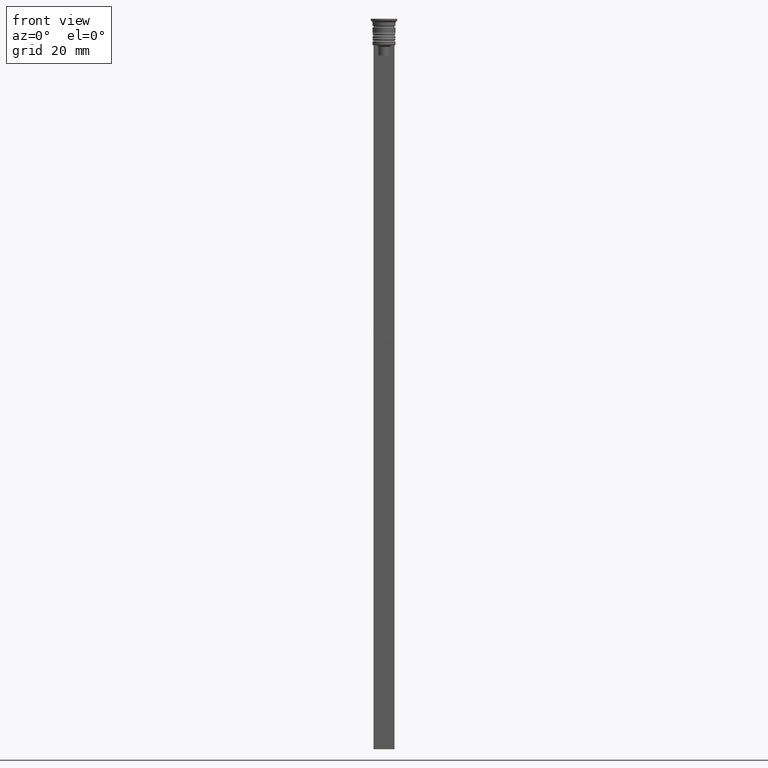
[diagram: clean part render]
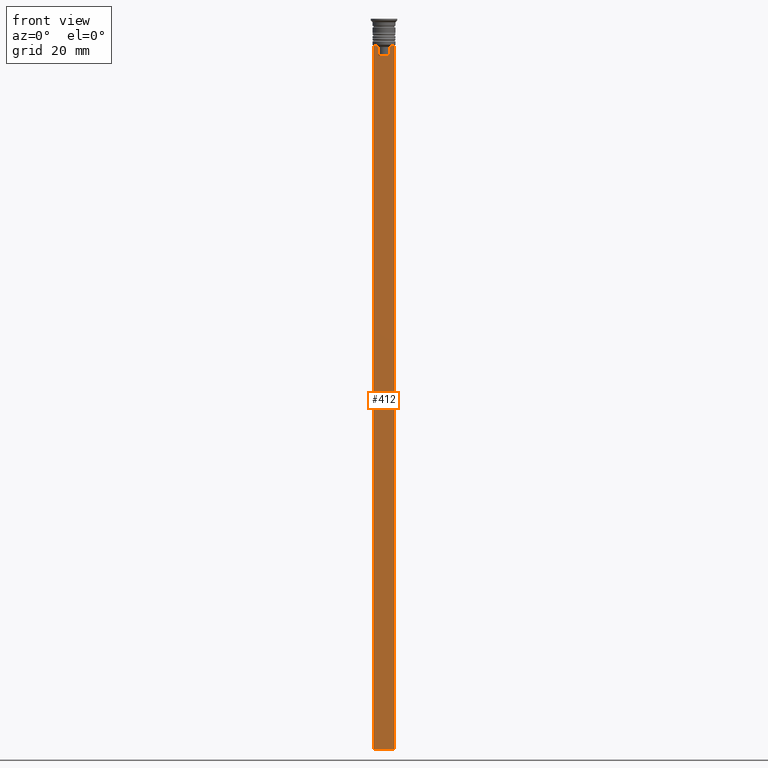
[diagram: same view with one face highlighted and labeled with its STEP entity id]
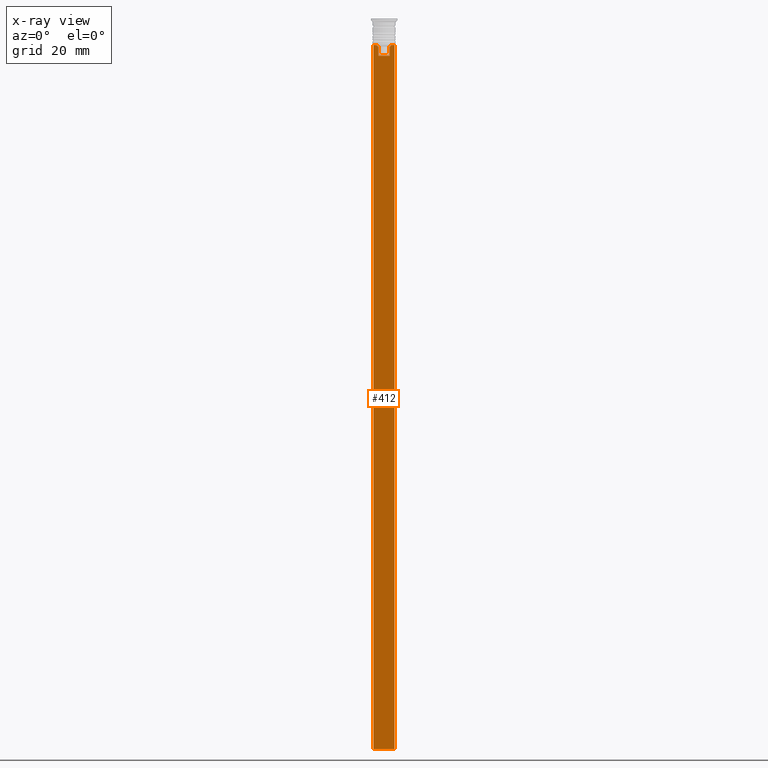
[diagram: x-ray of the same camera — body ghosted, the highlighted face saturated]
A machine part, front view. The second image highlights one B-rep face of the part: STEP entity #412.
The next image is the same camera in x-ray: the body ghosted, the highlighted face saturated — about 0% of this face is hidden behind the body in this view.
In plain terms, the highlighted planar face has unit normal (0, -1, -0).
Its self-contained STEP definition (entity closure, byte-faithful):
#10 = CARTESIAN_POINT ( 'NONE',  ( -1.952043732028444500, -0.3500000000000000333, -7.667018567316270961 ) ) ;
#102 = CARTESIAN_POINT ( 'NONE',  ( -3.000000000000004441, -0.3500000000000000333, -7.500000000000000000 ) ) ;
#123 = EDGE_CURVE ( 'NONE', #301, #2111, #736, .T. ) ;
#140 = LINE ( 'NONE', #984, #482 ) ;
#144 = VERTEX_POINT ( 'NONE', #250 ) ;
#149 = CARTESIAN_POINT ( 'NONE',  ( 1.952040775369266346, -0.3500000000000000333, -7.667021484535463394 ) ) ;
#150 = EDGE_CURVE ( 'NONE', #1911, #816, #1265, .T. ) ;
#231 = CARTESIAN_POINT ( 'NONE',  ( 2.999999999999995559, -0.3500000000000000333, -7.500000000000000000 ) ) ;
#250 = CARTESIAN_POINT ( 'NONE',  ( -1.612451549659713601, -0.3500000000000000333, -10.49999999999999822 ) ) ;
#260 = DIRECTION ( 'NONE',  ( 1.000000000000000000, 0.000000000000000000, 0.000000000000000000 ) ) ;
#301 = VERTEX_POINT ( 'NONE', #1477 ) ;
#354 = CARTESIAN_POINT ( 'NONE',  ( 2.999999999999995559, -0.3500000000000000333, -1.459304675784417915 ) ) ;
#368 = CARTESIAN_POINT ( 'NONE',  ( 2.999999999999995559, -0.3500000000000000333, -7.500000000000000000 ) ) ;
#389 = DIRECTION ( 'NONE',  ( 0.000000000000000000, 0.000000000000000000, -1.000000000000000000 ) ) ;
#412 = ADVANCED_FACE ( 'NONE', ( #1695 ), #509, .T. ) ;
#445 = CARTESIAN_POINT ( 'NONE',  ( 1.612451549659713601, -0.3500000000000000333, 0.000000000000000000 ) ) ;
#451 = ORIENTED_EDGE ( 'NONE', *, *, #1585, .F. ) ;
#470 = B_SPLINE_CURVE_WITH_KNOTS ( 'NONE', 3,
 ( #1474, #1654, #149, #811 ),
 .UNSPECIFIED., .F., .F.,
 ( 4, 4 ),
 ( 0.008600796474521228696, 0.009317962624906526645 ),
 .UNSPECIFIED. ) ;
#477 = VECTOR ( 'NONE', #2131, 1000.000000000000000 ) ;
#482 = VECTOR ( 'NONE', #1199, 1000.000000000000000 ) ;
#490 = CARTESIAN_POINT ( 'NONE',  ( 1.612451549659713601, -0.3500000000000000333, -8.000000000000000000 ) ) ;
#509 = PLANE ( 'NONE',  #677 ) ;
#520 = DIRECTION ( 'NONE',  ( 0.000000000000000000, 0.000000000000000000, -1.000000000000000000 ) ) ;
#521 = CARTESIAN_POINT ( 'NONE',  ( -1.782527878033862478, -0.3500000000000000333, -7.833794036819864637 ) ) ;
#623 = ORIENTED_EDGE ( 'NONE', *, *, #919, .T. ) ;
#628 = CARTESIAN_POINT ( 'NONE',  ( 2.999999999999995559, -0.3500000000000000333, -7.500000000000000000 ) ) ;
#648 = LINE ( 'NONE', #806, #793 ) ;
#673 = CARTESIAN_POINT ( 'NONE',  ( 2.121320343559647270, -0.3500000000000000333, -7.500000000000000000 ) ) ;
#674 = EDGE_CURVE ( 'NONE', #816, #1580, #140, .T. ) ;
#676 = CARTESIAN_POINT ( 'NONE',  ( -1.612451549659713601, -0.3500000000000000333, -8.000000000000000000 ) ) ;
#677 = AXIS2_PLACEMENT_3D ( 'NONE', #354, #2069, #520 ) ;
#736 = LINE ( 'NONE', #445, #477 ) ;
#760 = CARTESIAN_POINT ( 'NONE',  ( -3.000000000000004441, -0.3500000000000000333, -207.5000000000000284 ) ) ;
#774 = CARTESIAN_POINT ( 'NONE',  ( -2.121320343559647270, -0.3500000000000000333, -7.500000000000000000 ) ) ;
#781 = EDGE_CURVE ( 'NONE', #2111, #1911, #470, .T. ) ;
#793 = VECTOR ( 'NONE', #2165, 1000.000000000000000 ) ;
#806 = CARTESIAN_POINT ( 'NONE',  ( 2.999999999999995559, -0.3500000000000000333, -207.5000000000000284 ) ) ;
#811 = CARTESIAN_POINT ( 'NONE',  ( 2.121320343559647270, -0.3500000000000000333, -7.500000000000000000 ) ) ;
#816 = VERTEX_POINT ( 'NONE', #368 ) ;
#822 = VECTOR ( 'NONE', #260, 1000.000000000000000 ) ;
#835 = CARTESIAN_POINT ( 'NONE',  ( -2.121320343559647270, -0.3500000000000000333, -7.500000000000000000 ) ) ;
#859 = DIRECTION ( 'NONE',  ( 0.000000000000000000, 0.000000000000000000, -1.000000000000000000 ) ) ;
#861 = VECTOR ( 'NONE', #1342, 1000.000000000000000 ) ;
#919 = EDGE_CURVE ( 'NONE', #1013, #1483, #1059, .T. ) ;
#924 = ORIENTED_EDGE ( 'NONE', *, *, #123, .F. ) ;
#939 = ORIENTED_EDGE ( 'NONE', *, *, #150, .F. ) ;
#959 = DIRECTION ( 'NONE',  ( 1.000000000000000000, 0.000000000000000000, 0.000000000000000000 ) ) ;
#960 = EDGE_CURVE ( 'NONE', #1013, #1949, #1437, .T. ) ;
#984 = CARTESIAN_POINT ( 'NONE',  ( 2.999999999999995559, -0.3500000000000000333, -1.459304675784417915 ) ) ;
#989 = ORIENTED_EDGE ( 'NONE', *, *, #1327, .F. ) ;
#1013 = VERTEX_POINT ( 'NONE', #102 ) ;
#1031 = CARTESIAN_POINT ( 'NONE',  ( -1.612451549659713601, -0.3500000000000000333, 0.000000000000000000 ) ) ;
#1055 = VERTEX_POINT ( 'NONE', #1109 ) ;
#1059 = LINE ( 'NONE', #1908, #1891 ) ;
#1109 = CARTESIAN_POINT ( 'NONE',  ( -1.612451549659713601, -0.3500000000000000333, -8.000000000000000000 ) ) ;
#1183 = VECTOR ( 'NONE', #959, 1000.000000000000000 ) ;
#1199 = DIRECTION ( 'NONE',  ( 0.000000000000000000, 0.000000000000000000, -1.000000000000000000 ) ) ;
#1211 = ORIENTED_EDGE ( 'NONE', *, *, #1542, .F. ) ;
#1237 = ORIENTED_EDGE ( 'NONE', *, *, #960, .F. ) ;
#1265 = LINE ( 'NONE', #231, #822 ) ;
#1275 = B_SPLINE_CURVE_WITH_KNOTS ( 'NONE', 3,
 ( #835, #10, #521, #676 ),
 .UNSPECIFIED., .F., .F.,
 ( 4, 4 ),
 ( 0.003684653461239337929, 0.004398058763641257696 ),
 .UNSPECIFIED. ) ;
#1327 = EDGE_CURVE ( 'NONE', #1055, #144, #1378, .T. ) ;
#1342 = DIRECTION ( 'NONE',  ( 1.000000000000000000, 0.000000000000000000, 0.000000000000000000 ) ) ;
#1378 = LINE ( 'NONE', #1031, #1926 ) ;
#1437 = LINE ( 'NONE', #628, #1183 ) ;
#1474 = CARTESIAN_POINT ( 'NONE',  ( 1.612451549659713601, -0.3500000000000000333, -8.000000000000000000 ) ) ;
#1477 = CARTESIAN_POINT ( 'NONE',  ( 1.612451549659713601, -0.3500000000000000333, -10.49999999999999822 ) ) ;
#1478 = LINE ( 'NONE', #1829, #861 ) ;
#1483 = VERTEX_POINT ( 'NONE', #760 ) ;
#1542 = EDGE_CURVE ( 'NONE', #144, #301, #1478, .T. ) ;
#1545 = EDGE_LOOP ( 'NONE', ( #1840, #1237, #623, #451, #2004, #939, #2058, #924, #1211, #989 ) ) ;
#1580 = VERTEX_POINT ( 'NONE', #2024 ) ;
#1585 = EDGE_CURVE ( 'NONE', #1580, #1483, #648, .T. ) ;
#1623 = EDGE_CURVE ( 'NONE', #1949, #1055, #1275, .T. ) ;
#1654 = CARTESIAN_POINT ( 'NONE',  ( 1.782523989086206795, -0.3500000000000000333, -7.833797837268088315 ) ) ;
#1695 = FACE_OUTER_BOUND ( 'NONE', #1545, .T. ) ;
#1829 = CARTESIAN_POINT ( 'NONE',  ( 0.000000000000000000, -0.3500000000000000333, -10.49999999999999822 ) ) ;
#1840 = ORIENTED_EDGE ( 'NONE', *, *, #1623, .F. ) ;
#1891 = VECTOR ( 'NONE', #389, 1000.000000000000000 ) ;
#1908 = CARTESIAN_POINT ( 'NONE',  ( -3.000000000000004441, -0.3500000000000000333, -1.459304675784417915 ) ) ;
#1911 = VERTEX_POINT ( 'NONE', #673 ) ;
#1926 = VECTOR ( 'NONE', #859, 1000.000000000000000 ) ;
#1949 = VERTEX_POINT ( 'NONE', #774 ) ;
#2004 = ORIENTED_EDGE ( 'NONE', *, *, #674, .F. ) ;
#2024 = CARTESIAN_POINT ( 'NONE',  ( 2.999999999999995559, -0.3500000000000000333, -207.5000000000000284 ) ) ;
#2058 = ORIENTED_EDGE ( 'NONE', *, *, #781, .F. ) ;
#2069 = DIRECTION ( 'NONE',  ( 0.000000000000000000, -1.000000000000000000, -0.000000000000000000 ) ) ;
#2111 = VERTEX_POINT ( 'NONE', #490 ) ;
#2131 = DIRECTION ( 'NONE',  ( -0.000000000000000000, -0.000000000000000000, 1.000000000000000000 ) ) ;
#2165 = DIRECTION ( 'NONE',  ( -1.000000000000000000, 0.000000000000000000, 0.000000000000000000 ) ) ;